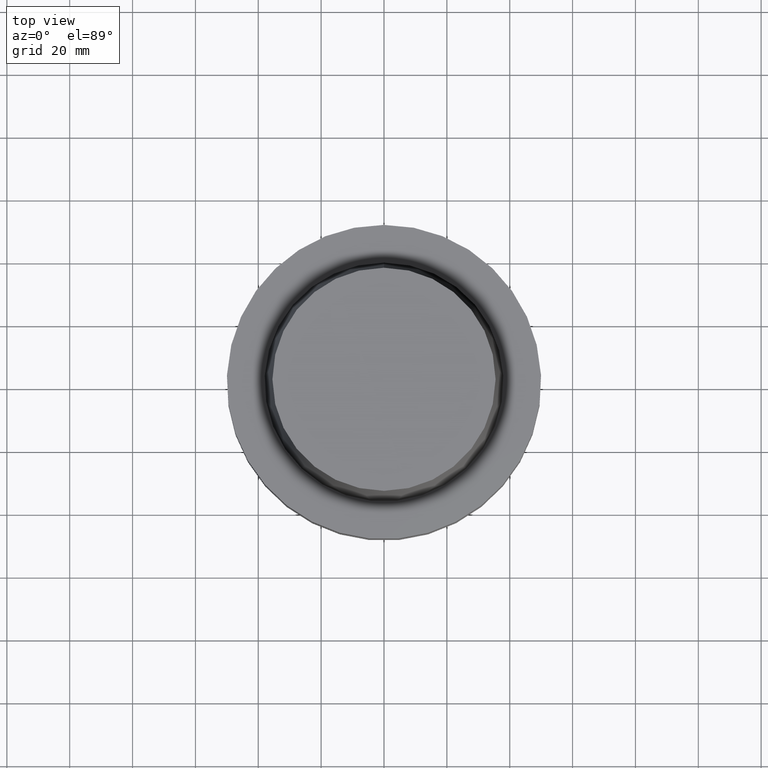
[diagram: clean part render]
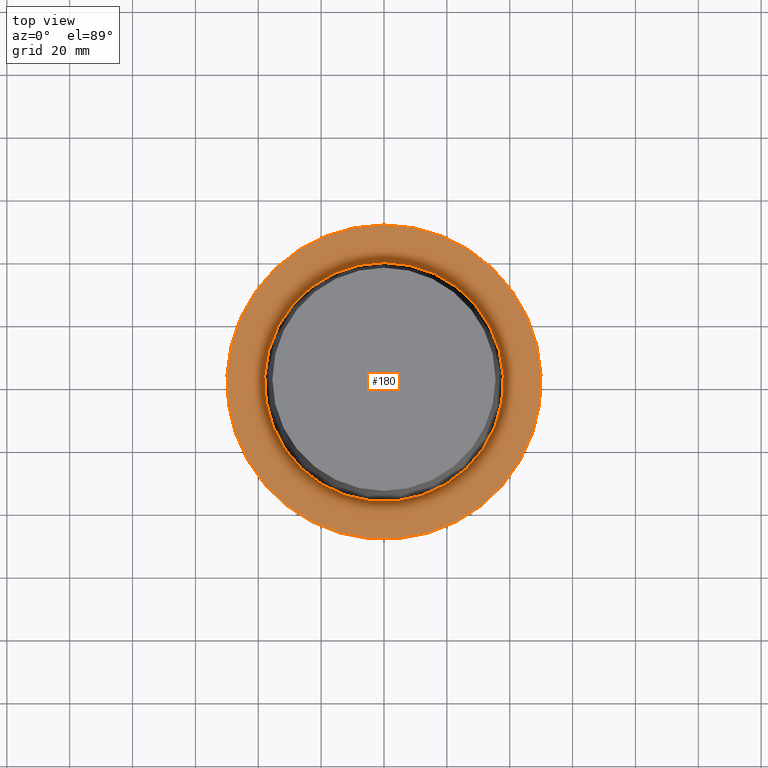
[diagram: same view with one face highlighted and labeled with its STEP entity id]
A machine part, top view. The second image highlights one B-rep face of the part: STEP entity #180.
In plain terms, the highlighted planar face has unit normal (-0, -0, 1).
Its self-contained STEP definition (entity closure, byte-faithful):
#131=EDGE_CURVE('Unnamed[1]',#298,#298,#299,.T.);
#180=ADVANCED_FACE('Unnamed[1]',(#374,#375),#376,.T.);
#197=EDGE_CURVE('Unnamed[1]',#401,#401,#402,.T.);
#298=VERTEX_POINT('',#517);
#299=CIRCLE('',#518,50.0);
#374=FACE_OUTER_BOUND('',#610,.T.);
#375=FACE_BOUND('',#611,.T.);
#376=PLANE('',#612);
#401=VERTEX_POINT('',#644);
#402=CIRCLE('',#645,37.9999999999349);
#517=CARTESIAN_POINT('',(-1.81547968506605E-031,50.0,-9.76766004263236E-016));
#518=AXIS2_PLACEMENT_3D('',#738,#739,#740);
#610=EDGE_LOOP('',(#823));
#611=EDGE_LOOP('',(#824));
#612=AXIS2_PLACEMENT_3D('',#825,#826,#827);
#644=CARTESIAN_POINT('',(-3.3636548776863E-032,37.9999999999349,-2.44634216324803E-015));
#645=AXIS2_PLACEMENT_3D('',#854,#855,#856);
#738=CARTESIAN_POINT('',(0.0,0.0,0.0));
#739=DIRECTION('',(6.12323399573677E-017,1.22464679914672E-016,-1.0));
#740=DIRECTION('',(-1.23259516440783E-032,1.0,1.22464679914672E-016));
#823=ORIENTED_EDGE('',*,*,#131,.F.);
#824=ORIENTED_EDGE('',*,*,#197,.T.);
#825=CARTESIAN_POINT('',(-1.07592258641734E-031,43.9999999999675,-1.71155408375563E-015));
#826=DIRECTION('',(-6.12323399573677E-017,-1.22464679914735E-016,1.0));
#827=DIRECTION('',(1.23259516440783E-032,-1.0,-1.22464679914735E-016));
#854=CARTESIAN_POINT('',(0.0,0.0,0.0));
#855=DIRECTION('',(6.12323399573677E-017,1.22464679914704E-016,-1.0));
#856=DIRECTION('',(-1.23259516440805E-032,1.0,1.22464679914704E-016));